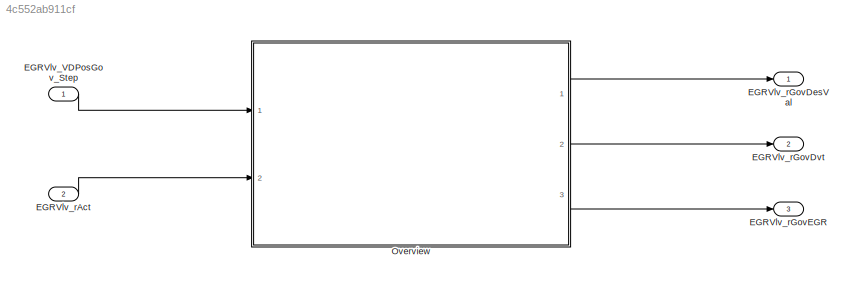
MODEL slx_4c552ab911cf
KIND model
CONFIG AbsTol = auto
CONFIG EnableMultiTasking = off
CONFIG FixedStep = 0.001
CONFIG MaxStep = auto
CONFIG MinStep = auto
CONFIG RelTol = 1e-3
CONFIG SampleTimeConstraint = Unconstrained
CONFIG SolverName = FixedStepDiscrete
CONFIG StartTime = 0.0
CONFIG StopTime = Inf
WORKSPACE source: mxarray member
WORKSPACE EGRVlv_VDPosGov_DT = 10
BLOCK [Inport] EGRVlv_VDPosGov_Step
  OutputFunctionCall = on
BLOCK [Inport] EGRVlv_rAct
  Description = Actuatorposition
  OutDataTypeStr = DutyCycle
  OutMax = 100
  OutMin = -100
  Port = 2
  PortDimensions = [1 1]
  Unit = %
BLOCK [Outport] EGRVlv_rGovDesVal
  Description = Internal desired value for governor
  OutDataTypeStr = DutyCycle
  OutMax = 100
  OutMin = -100
  PortDimensions = [1 1]
  Unit = %
BLOCK [Outport] EGRVlv_rGovDvt
  Description = Control deviation
  OutDataTypeStr = DutyCycle
  OutMax = 100
  OutMin = -100
  Port = 2
  PortDimensions = [1 1]
  Unit = %
BLOCK [Outport] EGRVlv_rGovEGR
  Description = Control value from the governor
  OutDataTypeStr = DutyCycle
  OutMax = 100
  OutMin = -100
  Port = 3
  PortDimensions = [1 1]
  Unit = %
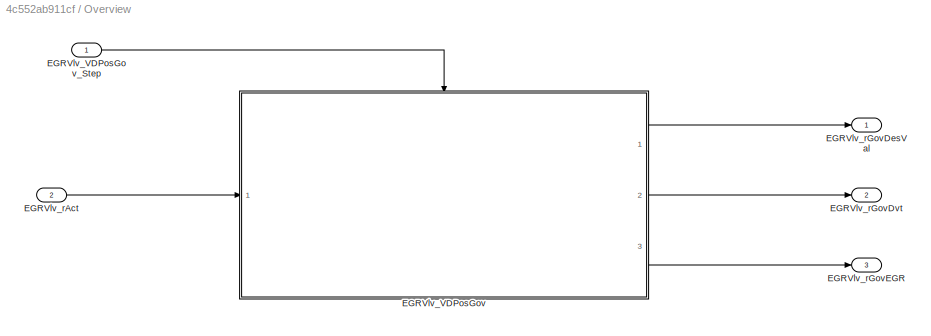
BLOCK [SubSystem] Overview
  Ports = [2, 3]
  RequestExecContextInheritance = off
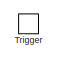
[diagram: Overview/EGRVlv_VDPosGov - part 1/2, top center region]
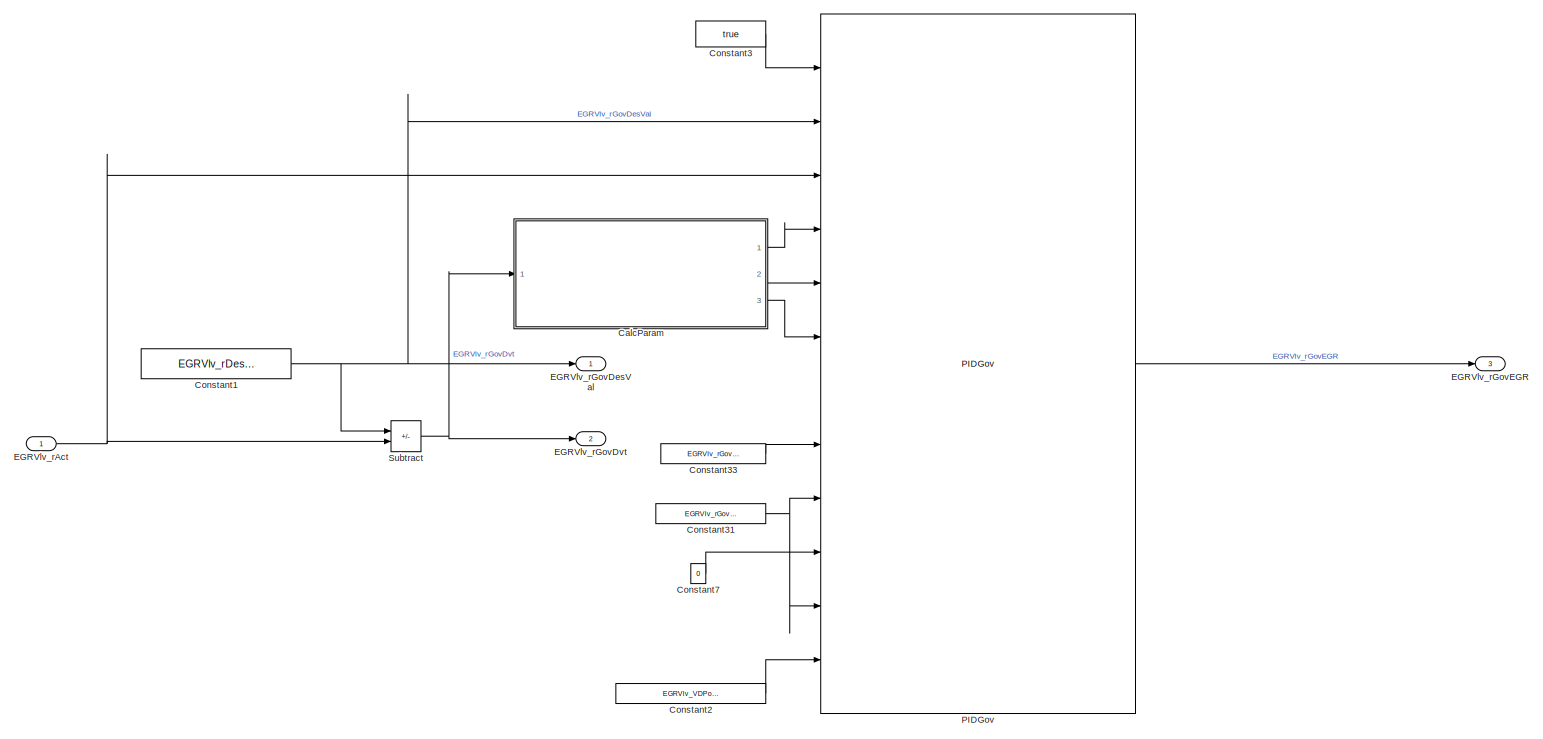
[diagram: Overview/EGRVlv_VDPosGov - part 2/2, most of the canvas]
BLOCK [SubSystem] Overview/EGRVlv_VDPosGov
  Ports = [1, 3, 0, 1]
  RequestExecContextInheritance = off
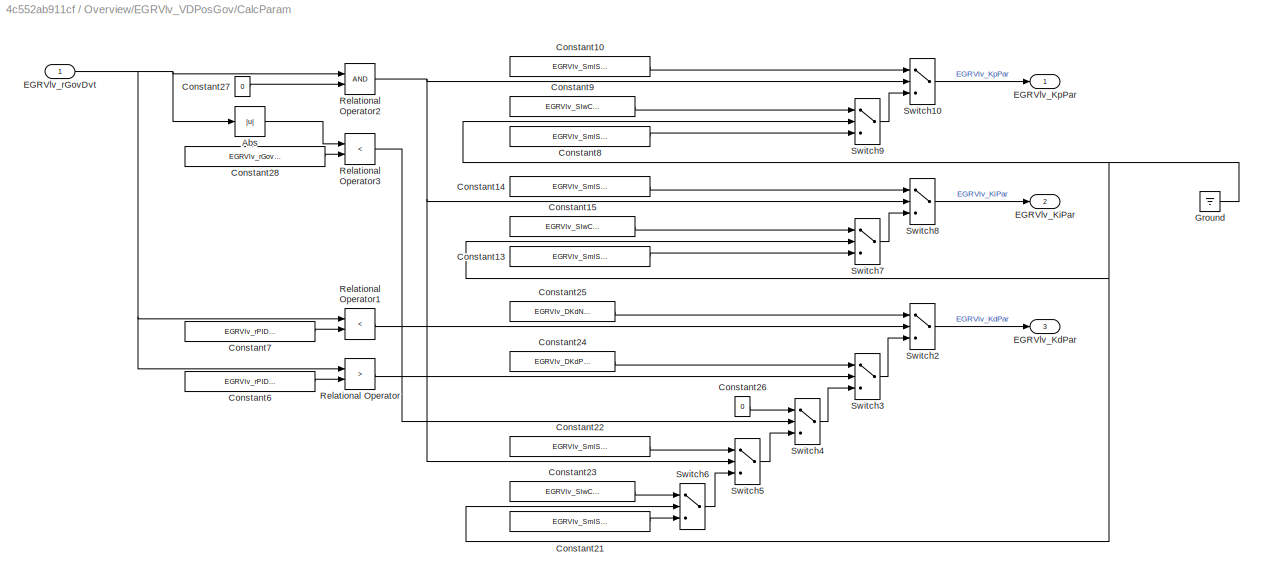
BLOCK [SubSystem] Overview/EGRVlv_VDPosGov/CalcParam
  Ports = [1, 3]
  RequestExecContextInheritance = off
BLOCK [Abs] Overview/EGRVlv_VDPosGov/CalcParam/Abs
  SaturateOnIntegerOverflow = off
BLOCK [Constant] Overview/EGRVlv_VDPosGov/CalcParam/Constant10
  Value = EGRVlv_SmlSigPsvPKp_C
BLOCK [Constant] Overview/EGRVlv_VDPosGov/CalcParam/Constant13
  Value = EGRVlv_SmlSigNgvIKi_C
BLOCK [Constant] Overview/EGRVlv_VDPosGov/CalcParam/Constant14
  Value = EGRVlv_SmlSigPsvIKi_C
BLOCK [Constant] Overview/EGRVlv_VDPosGov/CalcParam/Constant15
  Value = EGRVlv_SlwClsIKi_C
BLOCK [Constant] Overview/EGRVlv_VDPosGov/CalcParam/Constant21
  Value = EGRVlv_SmlSigNgvDKd_C
BLOCK [Constant] Overview/EGRVlv_VDPosGov/CalcParam/Constant22
  Value = EGRVlv_SmlSigPsvDKd_C
BLOCK [Constant] Overview/EGRVlv_VDPosGov/CalcParam/Constant23
  Value = EGRVlv_SlwClsDKd_C
BLOCK [Constant] Overview/EGRVlv_VDPosGov/CalcParam/Constant24
  Value = EGRVlv_DKdPsv_C
BLOCK [Constant] Overview/EGRVlv_VDPosGov/CalcParam/Constant25
  Value = EGRVlv_DKdNgv_C
BLOCK [Constant] Overview/EGRVlv_VDPosGov/CalcParam/Constant26
  OutDataTypeStr = Inherit: Inherit via back propagation
  Value = 0
BLOCK [Constant] Overview/EGRVlv_VDPosGov/CalcParam/Constant27
  OutDataTypeStr = Inherit: Inherit via back propagation
  Value = 0
BLOCK [Constant] Overview/EGRVlv_VDPosGov/CalcParam/Constant28
  Value = EGRVlv_rGovDvtThres_C
BLOCK [Constant] Overview/EGRVlv_VDPosGov/CalcParam/Constant6
  Value = EGRVlv_rPIDWinPsv_C
BLOCK [Constant] Overview/EGRVlv_VDPosGov/CalcParam/Constant7
  Value = EGRVlv_rPIDWinNgv_C
BLOCK [Constant] Overview/EGRVlv_VDPosGov/CalcParam/Constant8
  Value = EGRVlv_SmlSigNgvPKp_C
BLOCK [Constant] Overview/EGRVlv_VDPosGov/CalcParam/Constant9
  Value = EGRVlv_SlwClsPKp_C
BLOCK [Outport] Overview/EGRVlv_VDPosGov/CalcParam/EGRVlv_KdPar
  Port = 3
  Tag = %
  VectorParamsAs1DForOutWhenUnconnected = off
BLOCK [Outport] Overview/EGRVlv_VDPosGov/CalcParam/EGRVlv_KiPar
  Port = 2
  Tag = %
  VectorParamsAs1DForOutWhenUnconnected = off
BLOCK [Outport] Overview/EGRVlv_VDPosGov/CalcParam/EGRVlv_KpPar
  Tag = %
  VectorParamsAs1DForOutWhenUnconnected = off
BLOCK [Inport] Overview/EGRVlv_VDPosGov/CalcParam/EGRVlv_rGovDvt
  Tag = %
BLOCK [Ground] Overview/EGRVlv_VDPosGov/CalcParam/Ground
BLOCK [RelationalOperator] Overview/EGRVlv_VDPosGov/CalcParam/Relational Operator
  InputSameDT = off
  Operator = >
  OutDataTypeStr = boolean
  Ports = [2, 1]
  RndMeth = Simplest
BLOCK [RelationalOperator] Overview/EGRVlv_VDPosGov/CalcParam/Relational Operator1
  InputSameDT = off
  Operator = <
  OutDataTypeStr = boolean
  Ports = [2, 1]
  RndMeth = Simplest
BLOCK [RelationalOperator] Overview/EGRVlv_VDPosGov/CalcParam/Relational Operator2
  OutDataTypeStr = boolean
  Ports = [2, 1]
  RndMeth = Simplest
BLOCK [RelationalOperator] Overview/EGRVlv_VDPosGov/CalcParam/Relational Operator3
  InputSameDT = off
  Operator = <
  OutDataTypeStr = boolean
  Ports = [2, 1]
  RndMeth = Simplest
BLOCK [Switch] Overview/EGRVlv_VDPosGov/CalcParam/Switch10
  Criteria = u2 ~= 0
  InputSameDT = off
  SaturateOnIntegerOverflow = off
BLOCK [Switch] Overview/EGRVlv_VDPosGov/CalcParam/Switch2
  Criteria = u2 ~= 0
  InputSameDT = off
  SaturateOnIntegerOverflow = off
BLOCK [Switch] Overview/EGRVlv_VDPosGov/CalcParam/Switch3
  Criteria = u2 ~= 0
  InputSameDT = off
  SaturateOnIntegerOverflow = off
BLOCK [Switch] Overview/EGRVlv_VDPosGov/CalcParam/Switch4
  Criteria = u2 ~= 0
  InputSameDT = off
  SaturateOnIntegerOverflow = off
BLOCK [Switch] Overview/EGRVlv_VDPosGov/CalcParam/Switch5
  Criteria = u2 ~= 0
  InputSameDT = off
  SaturateOnIntegerOverflow = off
BLOCK [Switch] Overview/EGRVlv_VDPosGov/CalcParam/Switch6
  Criteria = u2 ~= 0
  InputSameDT = off
  SaturateOnIntegerOverflow = off
BLOCK [Switch] Overview/EGRVlv_VDPosGov/CalcParam/Switch7
  Criteria = u2 ~= 0
  InputSameDT = off
  SaturateOnIntegerOverflow = off
BLOCK [Switch] Overview/EGRVlv_VDPosGov/CalcParam/Switch8
  Criteria = u2 ~= 0
  InputSameDT = off
  SaturateOnIntegerOverflow = off
BLOCK [Switch] Overview/EGRVlv_VDPosGov/CalcParam/Switch9
  Criteria = u2 ~= 0
  InputSameDT = off
  SaturateOnIntegerOverflow = off
BLOCK [Constant] Overview/EGRVlv_VDPosGov/Constant1
  Value = EGRVlv_rDesEGR_C
BLOCK [Constant] Overview/EGRVlv_VDPosGov/Constant2
  Value = EGRVlv_VDPosGov_DT
BLOCK [Constant] Overview/EGRVlv_VDPosGov/Constant3
  OutDataTypeStr = boolean
  Value = true
BLOCK [Constant] Overview/EGRVlv_VDPosGov/Constant31
  Value = EGRVlv_rGovMin_C
BLOCK [Constant] Overview/EGRVlv_VDPosGov/Constant33
  Value = EGRVlv_rGovMax_C
BLOCK [Constant] Overview/EGRVlv_VDPosGov/Constant7
  OutDataTypeStr = Inherit: Inherit via back propagation
  Value = 0
BLOCK [Inport] Overview/EGRVlv_VDPosGov/EGRVlv_rAct
  Tag = %
BLOCK [Outport] Overview/EGRVlv_VDPosGov/EGRVlv_rGovDesVal
  Tag = %
  VectorParamsAs1DForOutWhenUnconnected = off
BLOCK [Outport] Overview/EGRVlv_VDPosGov/EGRVlv_rGovDvt
  Port = 2
  Tag = %
  VectorParamsAs1DForOutWhenUnconnected = off
BLOCK [Outport] Overview/EGRVlv_VDPosGov/EGRVlv_rGovEGR
  Port = 3
  Tag = %
  VectorParamsAs1DForOutWhenUnconnected = off
BLOCK [Reference] Overview/EGRVlv_VDPosGov/PIDGov  REF=sllib/Transfer Functions/PIDGov  (lib defined in slx_2b0aa6d284ff)
  Ports = [12, 1]
  SourceBlock = sllib/Transfer Functions/PIDGov
  SourceProductName = sllib
  SourceType = PIDGov
BLOCK [Sum] Overview/EGRVlv_VDPosGov/Subtract
  IconShape = rectangular
  Inputs = +-
  Ports = [2, 1]
  SaturateOnIntegerOverflow = on
BLOCK [TriggerPort] Overview/EGRVlv_VDPosGov/Trigger
  PortDimensions = 1
  Ports = []
  SampleTime = -1
  StatesWhenEnabling = held
  TriggerType = function-call
  VariantControl = Variant
BLOCK [Inport] Overview/EGRVlv_VDPosGov_Step
BLOCK [Inport] Overview/EGRVlv_rAct
  Port = 2
BLOCK [Outport] Overview/EGRVlv_rGovDesVal
  VectorParamsAs1DForOutWhenUnconnected = off
BLOCK [Outport] Overview/EGRVlv_rGovDvt
  Port = 2
  VectorParamsAs1DForOutWhenUnconnected = off
BLOCK [Outport] Overview/EGRVlv_rGovEGR
  Port = 3
  VectorParamsAs1DForOutWhenUnconnected = off
LINE EGRVlv_VDPosGov_Step:1 -> Overview:1
LINE EGRVlv_rAct:1 -> Overview:2
LINE Overview/EGRVlv_VDPosGov/CalcParam/Abs:1 -> Overview/EGRVlv_VDPosGov/CalcParam/Relational Operator3:1
LINE Overview/EGRVlv_VDPosGov/CalcParam/Constant10:1 -> Overview/EGRVlv_VDPosGov/CalcParam/Switch10:1
LINE Overview/EGRVlv_VDPosGov/CalcParam/Constant13:1 -> Overview/EGRVlv_VDPosGov/CalcParam/Switch7:3
LINE Overview/EGRVlv_VDPosGov/CalcParam/Constant14:1 -> Overview/EGRVlv_VDPosGov/CalcParam/Switch8:1
LINE Overview/EGRVlv_VDPosGov/CalcParam/Constant15:1 -> Overview/EGRVlv_VDPosGov/CalcParam/Switch7:1
LINE Overview/EGRVlv_VDPosGov/CalcParam/Constant21:1 -> Overview/EGRVlv_VDPosGov/CalcParam/Switch6:3
LINE Overview/EGRVlv_VDPosGov/CalcParam/Constant22:1 -> Overview/EGRVlv_VDPosGov/CalcParam/Switch5:1
LINE Overview/EGRVlv_VDPosGov/CalcParam/Constant23:1 -> Overview/EGRVlv_VDPosGov/CalcParam/Switch6:1
LINE Overview/EGRVlv_VDPosGov/CalcParam/Constant24:1 -> Overview/EGRVlv_VDPosGov/CalcParam/Switch3:1
LINE Overview/EGRVlv_VDPosGov/CalcParam/Constant25:1 -> Overview/EGRVlv_VDPosGov/CalcParam/Switch2:1
LINE Overview/EGRVlv_VDPosGov/CalcParam/Constant26:1 -> Overview/EGRVlv_VDPosGov/CalcParam/Switch4:1
LINE Overview/EGRVlv_VDPosGov/CalcParam/Constant27:1 -> Overview/EGRVlv_VDPosGov/CalcParam/Relational Operator2:2
LINE Overview/EGRVlv_VDPosGov/CalcParam/Constant28:1 -> Overview/EGRVlv_VDPosGov/CalcParam/Relational Operator3:2
LINE Overview/EGRVlv_VDPosGov/CalcParam/Constant6:1 -> Overview/EGRVlv_VDPosGov/CalcParam/Relational Operator:2
LINE Overview/EGRVlv_VDPosGov/CalcParam/Constant7:1 -> Overview/EGRVlv_VDPosGov/CalcParam/Relational Operator1:2
LINE Overview/EGRVlv_VDPosGov/CalcParam/Constant8:1 -> Overview/EGRVlv_VDPosGov/CalcParam/Switch9:3
LINE Overview/EGRVlv_VDPosGov/CalcParam/Constant9:1 -> Overview/EGRVlv_VDPosGov/CalcParam/Switch9:1
NET Overview/EGRVlv_VDPosGov/CalcParam/EGRVlv_rGovDvt:1 -> Overview/EGRVlv_VDPosGov/CalcParam/Abs:1, Overview/EGRVlv_VDPosGov/CalcParam/Relational Operator1:1, Overview/EGRVlv_VDPosGov/CalcParam/Relational Operator2:1, Overview/EGRVlv_VDPosGov/CalcParam/Relational Operator:1
NET Overview/EGRVlv_VDPosGov/CalcParam/Ground:1 -> Overview/EGRVlv_VDPosGov/CalcParam/Switch6:2, Overview/EGRVlv_VDPosGov/CalcParam/Switch7:2, Overview/EGRVlv_VDPosGov/CalcParam/Switch9:2
LINE Overview/EGRVlv_VDPosGov/CalcParam/Relational Operator1:1 -> Overview/EGRVlv_VDPosGov/CalcParam/Switch2:2
NET Overview/EGRVlv_VDPosGov/CalcParam/Relational Operator2:1 -> Overview/EGRVlv_VDPosGov/CalcParam/Switch10:2, Overview/EGRVlv_VDPosGov/CalcParam/Switch5:2, Overview/EGRVlv_VDPosGov/CalcParam/Switch8:2
LINE Overview/EGRVlv_VDPosGov/CalcParam/Relational Operator3:1 -> Overview/EGRVlv_VDPosGov/CalcParam/Switch4:2
LINE Overview/EGRVlv_VDPosGov/CalcParam/Relational Operator:1 -> Overview/EGRVlv_VDPosGov/CalcParam/Switch3:2
LINE Overview/EGRVlv_VDPosGov/CalcParam/Switch10:1 -> Overview/EGRVlv_VDPosGov/CalcParam/EGRVlv_KpPar:1
LINE Overview/EGRVlv_VDPosGov/CalcParam/Switch2:1 -> Overview/EGRVlv_VDPosGov/CalcParam/EGRVlv_KdPar:1
LINE Overview/EGRVlv_VDPosGov/CalcParam/Switch3:1 -> Overview/EGRVlv_VDPosGov/CalcParam/Switch2:3
LINE Overview/EGRVlv_VDPosGov/CalcParam/Switch4:1 -> Overview/EGRVlv_VDPosGov/CalcParam/Switch3:3
LINE Overview/EGRVlv_VDPosGov/CalcParam/Switch5:1 -> Overview/EGRVlv_VDPosGov/CalcParam/Switch4:3
LINE Overview/EGRVlv_VDPosGov/CalcParam/Switch6:1 -> Overview/EGRVlv_VDPosGov/CalcParam/Switch5:3
LINE Overview/EGRVlv_VDPosGov/CalcParam/Switch7:1 -> Overview/EGRVlv_VDPosGov/CalcParam/Switch8:3
LINE Overview/EGRVlv_VDPosGov/CalcParam/Switch8:1 -> Overview/EGRVlv_VDPosGov/CalcParam/EGRVlv_KiPar:1
LINE Overview/EGRVlv_VDPosGov/CalcParam/Switch9:1 -> Overview/EGRVlv_VDPosGov/CalcParam/Switch10:3
LINE Overview/EGRVlv_VDPosGov/CalcParam:1 -> Overview/EGRVlv_VDPosGov/PIDGov:4
LINE Overview/EGRVlv_VDPosGov/CalcParam:2 -> Overview/EGRVlv_VDPosGov/PIDGov:5
LINE Overview/EGRVlv_VDPosGov/CalcParam:3 -> Overview/EGRVlv_VDPosGov/PIDGov:6
NET Overview/EGRVlv_VDPosGov/Constant1:1 -> Overview/EGRVlv_VDPosGov/EGRVlv_rGovDesVal:1, Overview/EGRVlv_VDPosGov/PIDGov:2, Overview/EGRVlv_VDPosGov/Subtract:1
LINE Overview/EGRVlv_VDPosGov/Constant2:1 -> Overview/EGRVlv_VDPosGov/PIDGov:12
NET Overview/EGRVlv_VDPosGov/Constant31:1 -> Overview/EGRVlv_VDPosGov/PIDGov:11, Overview/EGRVlv_VDPosGov/PIDGov:9
LINE Overview/EGRVlv_VDPosGov/Constant33:1 -> Overview/EGRVlv_VDPosGov/PIDGov:8
LINE Overview/EGRVlv_VDPosGov/Constant3:1 -> Overview/EGRVlv_VDPosGov/PIDGov:1
LINE Overview/EGRVlv_VDPosGov/Constant7:1 -> Overview/EGRVlv_VDPosGov/PIDGov:10
NET Overview/EGRVlv_VDPosGov/EGRVlv_rAct:1 -> Overview/EGRVlv_VDPosGov/PIDGov:3, Overview/EGRVlv_VDPosGov/Subtract:2
LINE Overview/EGRVlv_VDPosGov/PIDGov:1 -> Overview/EGRVlv_VDPosGov/EGRVlv_rGovEGR:1
NET Overview/EGRVlv_VDPosGov/Subtract:1 -> Overview/EGRVlv_VDPosGov/CalcParam:1, Overview/EGRVlv_VDPosGov/EGRVlv_rGovDvt:1
LINE Overview/EGRVlv_VDPosGov:1 -> Overview/EGRVlv_rGovDesVal:1
LINE Overview/EGRVlv_VDPosGov:2 -> Overview/EGRVlv_rGovDvt:1
LINE Overview/EGRVlv_VDPosGov:3 -> Overview/EGRVlv_rGovEGR:1
LINE Overview/EGRVlv_VDPosGov_Step:1 -> Overview/EGRVlv_VDPosGov:trigger
LINE Overview/EGRVlv_rAct:1 -> Overview/EGRVlv_VDPosGov:1
LINE Overview:1 -> EGRVlv_rGovDesVal:1
LINE Overview:2 -> EGRVlv_rGovDvt:1
LINE Overview:3 -> EGRVlv_rGovEGR:1
note: NET lines group one-source signal fan-out (src -> all destinations, sorted); 1:1 wires keep LINE
